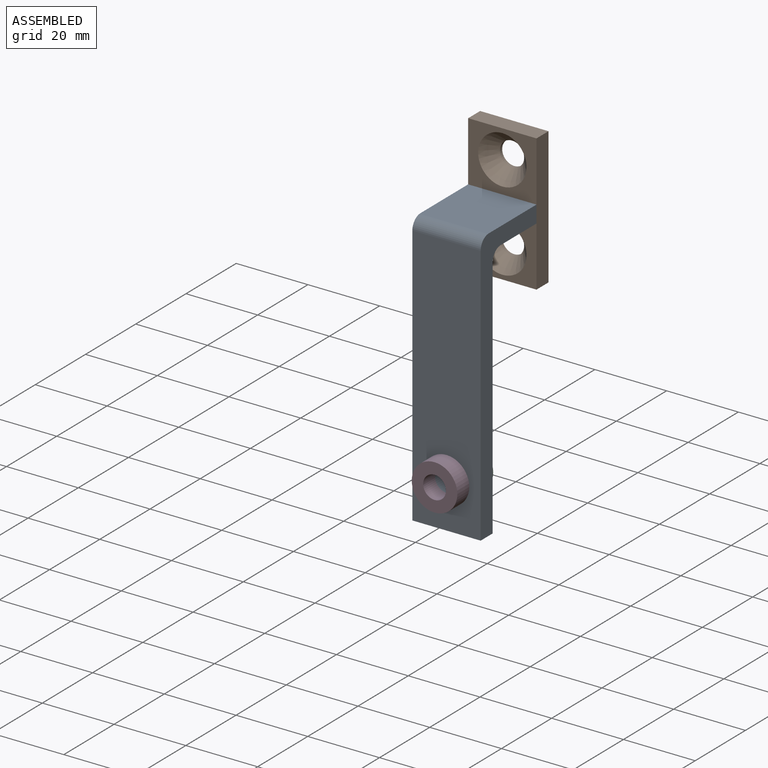
[diagram: assembled view]
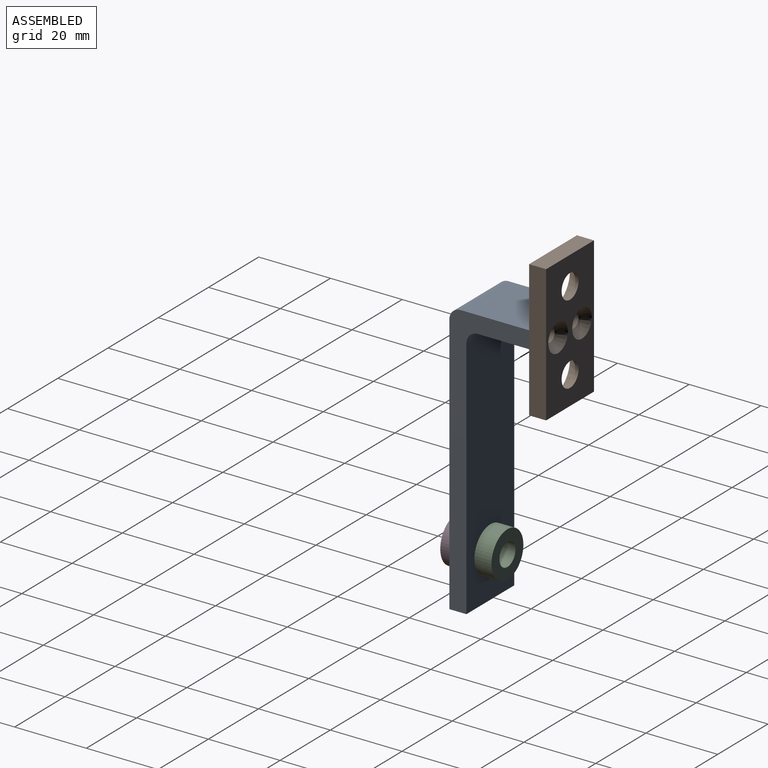
[diagram: assembled view, second angle]
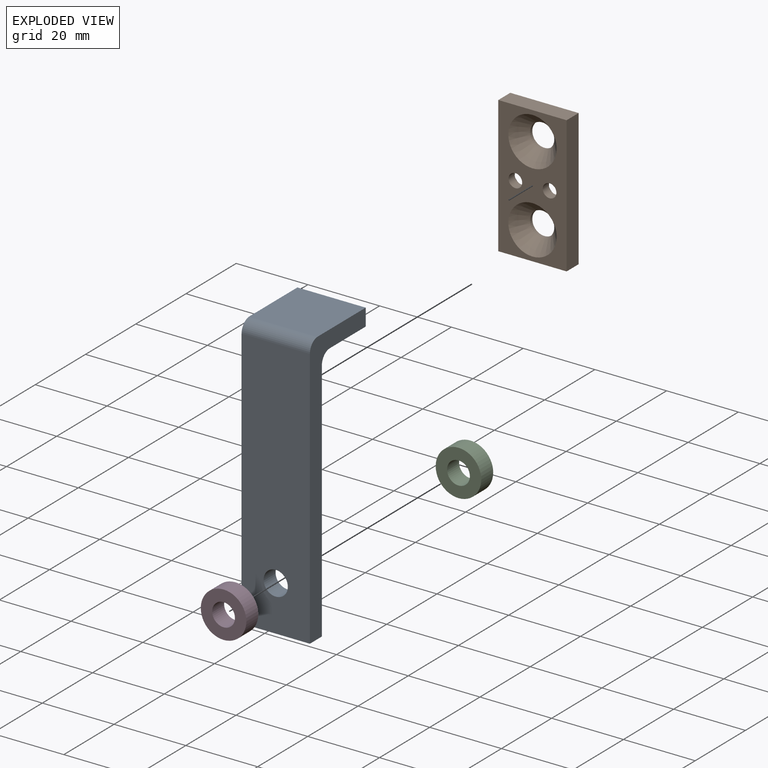
[diagram: exploded view]
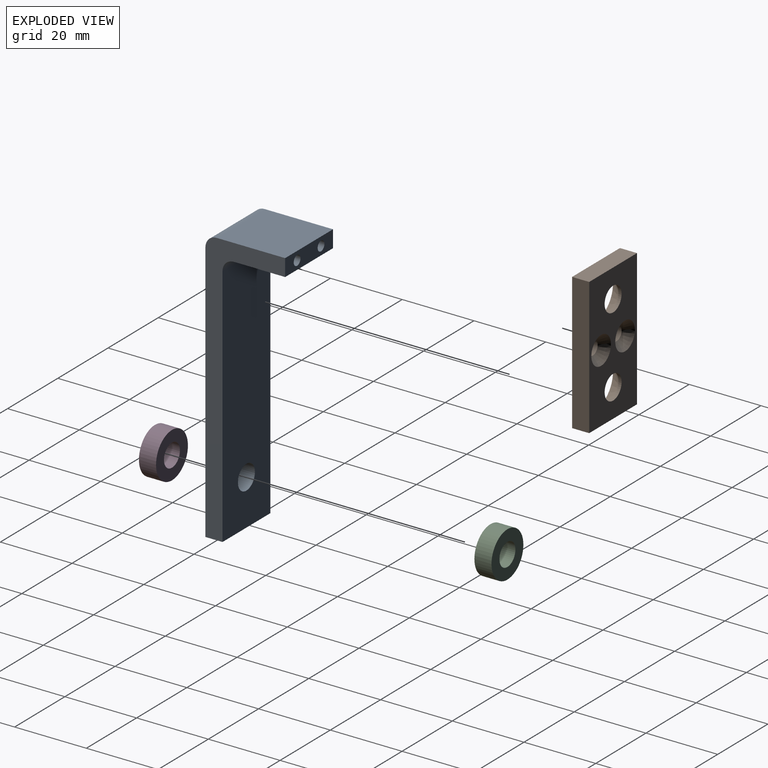
[diagram: exploded view, second angle]
ASSEMBLY  parts=4 mates=3
PART A: 15 faces, bbox 19.1x22.2x76.2 mm
  f0: plane 73.03x19.05mm, normal (0,-1,0), area 1355.3mm2, adj f1,f6,f7,f9,f14
  f1: plane 19.05x4.76mm, normal (0,0,-1), area 90.7mm2, adj f0,f2,f6,f7
  f2: plane 68.26x19.05mm, normal (0,1,0), area 1264.5mm2, adj f1,f6,f7,f8,f14
  f3: plane 19.05x14.29mm, normal (0,0,-1), area 272.2mm2, adj f4,f6,f7,f8
  f4: plane 19.05x4.76mm, normal (0,1,0), area 79.2mm2, adj f3,f5,f6,f7,f11,f13
  f5: plane 19.05x19.05mm, normal (0,0,1), area 362.9mm2, adj f4,f6,f7,f9
  f6: plane 76.2x22.23mm, normal (1,0,0), area 446.1mm2, adj f0,f1,f2,f3,f4,f5,f8,f9
  f7: plane 76.2x22.23mm, normal (-1,0,0), area 446.1mm2, adj f0,f1,f2,f3,f4,f5,f8,f9
  f8: cylinder r=3.17mm len=19.05mm, axis (1,0,0), area 95mm2, adj f2,f3,f6,f7
  f9: cylinder r=3.17mm len=19.05mm, axis (-1,0,0), area 95mm2, adj f0,f5,f6,f7
  f10: cone r=0mm half-angle=59deg, axis (0,1,0), area 6.7mm2, adj f11
  f11: cylinder r=1.35mm len=12.7mm, axis (0,1,0), area 107.9mm2, adj f4,f10
  f12: cone r=0mm half-angle=59deg, axis (0,1,0), area 6.7mm2, adj f13
  f13: cylinder r=1.35mm len=12.7mm, axis (0,1,0), area 107.9mm2, adj f4,f12
  f14: cylinder r=3.38mm len=6.76mm, axis (0,-1,0), area 101.1mm2, adj f0,f2
PART B: 14 faces, bbox 19.1x4.8x38.1 mm
  f0: plane 19.05x4.76mm, normal (0,0,-1), area 90.7mm2, adj f1,f3,f4,f5
  f1: plane 38.1x4.76mm, normal (1,0,0), area 181.5mm2, adj f0,f2,f4,f5
  f2: plane 19.05x4.76mm, normal (0,0,1), area 90.7mm2, adj f1,f3,f4,f5
  f3: plane 38.1x4.76mm, normal (-1,0,0), area 181.5mm2, adj f0,f2,f4,f5
  f4: plane 38.1x19.05mm, normal (0,-1,0), area 417.4mm2, adj f0,f1,f2,f3,f6,f8,f11,f13
  f5: plane 38.1x19.05mm, normal (0,1,0), area 558.6mm2, adj f0,f1,f2,f3,f7,f9,f10,f12
  f6: cylinder r=1.9mm len=3.8mm, axis (0,1,0), area 29.4mm2, adj f4,f7
  f7: cone r=1.9mm half-angle=41deg, axis (0,1,0), area 55.5mm2, adj f5,f6
  f8: cylinder r=1.9mm len=3.8mm, axis (0,1,0), area 29.4mm2, adj f4,f9
  f9: cone r=1.9mm half-angle=41deg, axis (0,1,0), area 55.5mm2, adj f5,f8
  f10: cylinder r=3.38mm len=6.76mm, axis (0,-1,0), area 18.9mm2, adj f5,f11
  f11: cone r=3.38mm half-angle=41deg, axis (0,-1,0), area 163.1mm2, adj f4,f10
  f12: cylinder r=3.38mm len=6.76mm, axis (0,-1,0), area 18.9mm2, adj f5,f13
  f13: cone r=3.38mm half-angle=41deg, axis (0,-1,0), area 163.1mm2, adj f4,f12
PART C: 4 faces, bbox 12.7x4.8x12.7 mm
  f0: cylinder r=3.17mm len=6.35mm, axis (0,1,0), area 95mm2, adj f2,f3
  f1: cylinder r=6.35mm len=12.7mm, axis (0,1,0), area 190mm2, adj f2,f3
  f2: plane 12.7x12.7mm, normal (0,-1,0), area 95mm2, adj f0,f1
  f3: plane 12.7x12.7mm, normal (0,1,0), area 95mm2, adj f0,f1
PART D: same geometry as C
PLACE A t=(24,6.66,-1.76)mm
PLACE B t=(24,33.64,72.05)mm
PLACE C t=(24,16.18,10.94)mm
PLACE D t=(24,6.66,10.94)mm
MATE fastened A.f14 <-> C.f1  axis (0,1,0) through (24,11.42,10.94)mm
MATE fastened B.f8 <-> A.f10  axis (0,-1,0) through (19.24,28.88,72.05)mm
MATE fastened A.f14 <-> D.f1  axis (0,-1,0) through (24,6.66,10.94)mm
